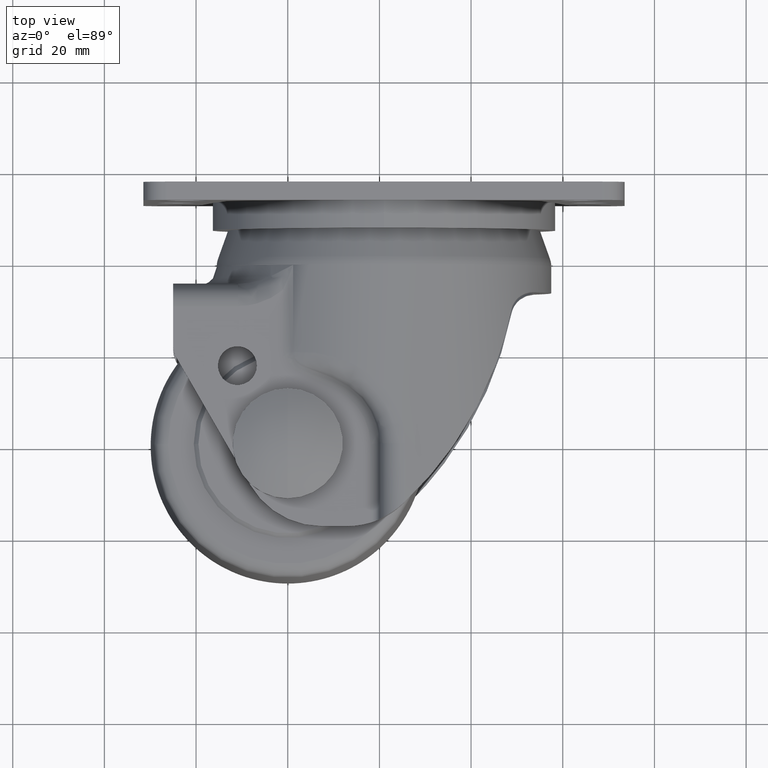
[diagram: clean part render]
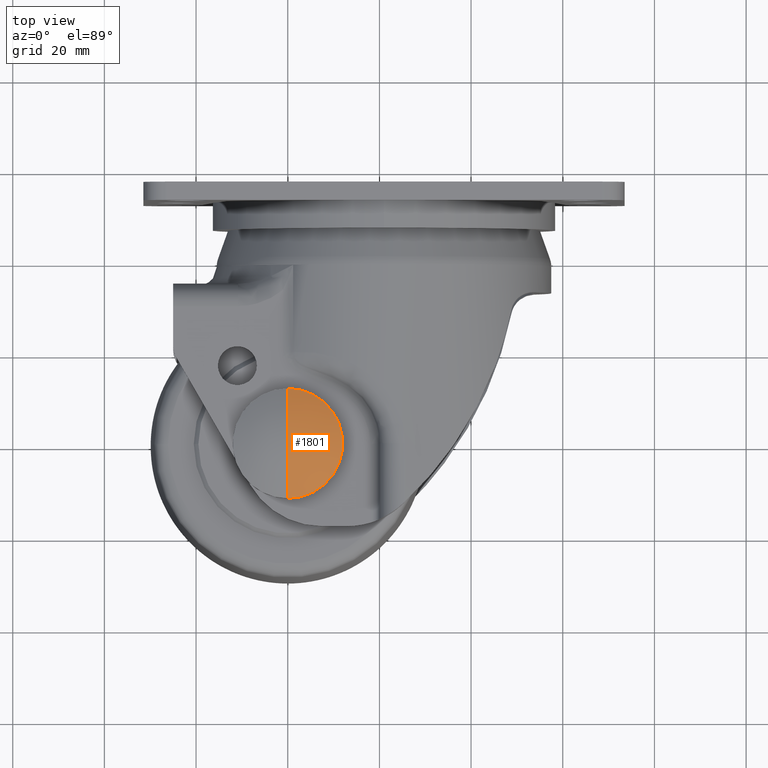
[diagram: same view with one face highlighted and labeled with its STEP entity id]
A machine part, top view. The second image highlights one B-rep face of the part: STEP entity #1801.
In plain terms, the highlighted spherical surface has radius 25 mm.
Its self-contained STEP definition (entity closure, byte-faithful):
#30 = ORIENTED_EDGE ( 'NONE', *, *, #4676, .F. ) ;
#49 = VERTEX_POINT ( 'NONE', #2183 ) ;
#381 = DIRECTION ( 'NONE',  ( -1.224646799147353207E-16, 1.000000000000000000, 0.000000000000000000 ) ) ;
#870 = CARTESIAN_POINT ( 'NONE',  ( 0.000000000000000000, -7.314051680132117133E-15, 10.99999999999999645 ) ) ;
#977 = DIRECTION ( 'NONE',  ( 0.000000000000000000, 1.000000000000000000, 2.775557561562891351E-16 ) ) ;
#1484 = EDGE_CURVE ( 'NONE', #4104, #49, #5411, .T. ) ;
#1742 = CARTESIAN_POINT ( 'NONE',  ( 0.000000000000000000, -7.314051680132117133E-15, 10.99999999999999645 ) ) ;
#1801 = ADVANCED_FACE ( 'NONE', ( #4505 ), #4013, .T. ) ;
#1882 = CARTESIAN_POINT ( 'NONE',  ( 0.000000000000000000, -9.633089942247320869E-15, 32.93171219946131600 ) ) ;
#2028 = AXIS2_PLACEMENT_3D ( 'NONE', #870, #6468, #381 ) ;
#2104 = EDGE_LOOP ( 'NONE', ( #3010, #2316, #30 ) ) ;
#2183 = CARTESIAN_POINT ( 'NONE',  ( 1.469576158976822567E-15, -12.00000000000000178, 32.93171219946130890 ) ) ;
#2316 = ORIENTED_EDGE ( 'NONE', *, *, #1484, .T. ) ;
#2806 = DIRECTION ( 'NONE',  ( 0.000000000000000000, 1.000000000000000000, 0.000000000000000000 ) ) ;
#2908 = AXIS2_PLACEMENT_3D ( 'NONE', #1742, #3777, #5774 ) ;
#3010 = ORIENTED_EDGE ( 'NONE', *, *, #5731, .F. ) ;
#3137 = VERTEX_POINT ( 'NONE', #5222 ) ;
#3289 = CARTESIAN_POINT ( 'NONE',  ( 0.000000000000000000, -1.209988428537836739E-14, 36.00000000000000000 ) ) ;
#3777 = DIRECTION ( 'NONE',  ( -1.000000000000000000, 0.000000000000000000, 0.000000000000000000 ) ) ;
#4013 = SPHERICAL_SURFACE ( 'NONE', #5937, 25.00000000000000000 ) ;
#4104 = VERTEX_POINT ( 'NONE', #3289 ) ;
#4505 = FACE_OUTER_BOUND ( 'NONE', #2104, .T. ) ;
#4676 = EDGE_CURVE ( 'NONE', #3137, #49, #5002, .T. ) ;
#5002 = CIRCLE ( 'NONE', #5203, 12.00000000000000000 ) ;
#5203 = AXIS2_PLACEMENT_3D ( 'NONE', #1882, #5867, #2806 ) ;
#5222 = CARTESIAN_POINT ( 'NONE',  ( 0.000000000000000000, 11.99999999999997868, 32.93171219946132311 ) ) ;
#5411 = CIRCLE ( 'NONE', #2028, 25.00000000000000000 ) ;
#5509 = DIRECTION ( 'NONE',  ( 1.000000000000000000, 0.000000000000000000, -0.000000000000000000 ) ) ;
#5731 = EDGE_CURVE ( 'NONE', #4104, #3137, #6151, .T. ) ;
#5774 = DIRECTION ( 'NONE',  ( 0.000000000000000000, 0.000000000000000000, 1.000000000000000000 ) ) ;
#5867 = DIRECTION ( 'NONE',  ( -0.000000000000000000, 2.526656441672177028E-16, -1.000000000000000000 ) ) ;
#5937 = AXIS2_PLACEMENT_3D ( 'NONE', #6001, #5509, #977 ) ;
#6001 = CARTESIAN_POINT ( 'NONE',  ( 0.000000000000000000, -7.314051680132117133E-15, 10.99999999999999645 ) ) ;
#6151 = CIRCLE ( 'NONE', #2908, 25.00000000000000000 ) ;
#6468 = DIRECTION ( 'NONE',  ( 1.000000000000000000, 1.224646799147353207E-16, 3.094261723838872557E-32 ) ) ;